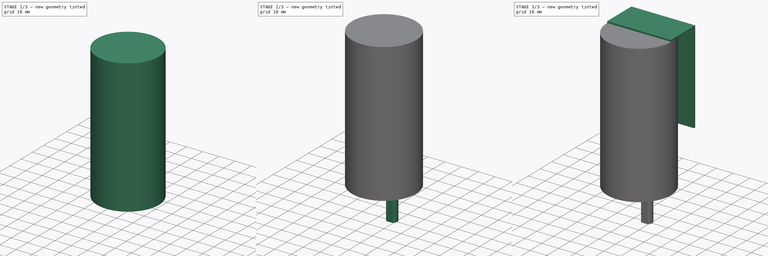
[diagram: build sequence overview — one tinted view per stage of 3, left to right]
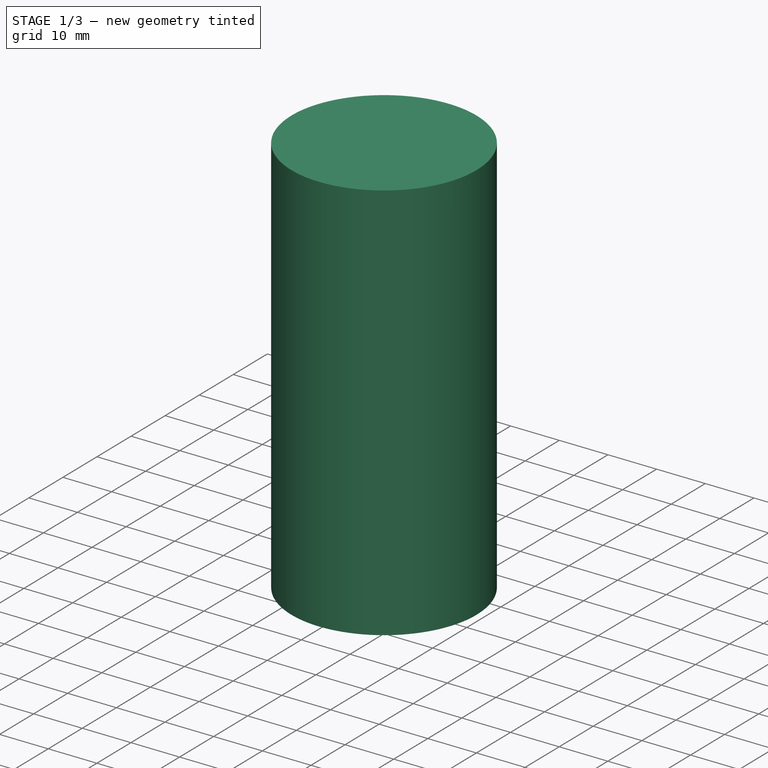
[diagram: stage 1 of 3 — iso view after this stage's code; geometry added in this stage tinted green]
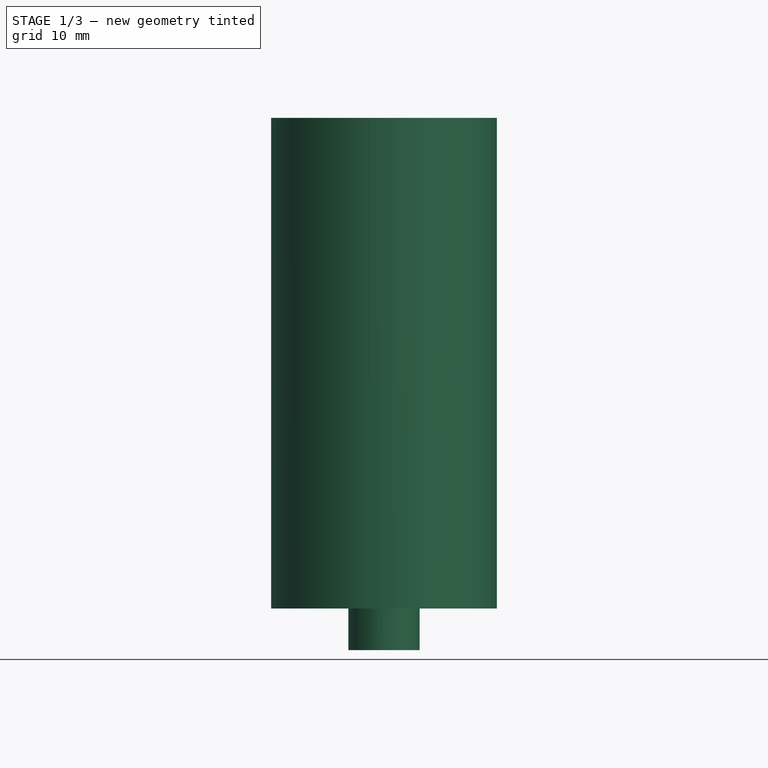
[diagram: stage 1 of 3 — front view after this stage's code; geometry added in this stage tinted green]
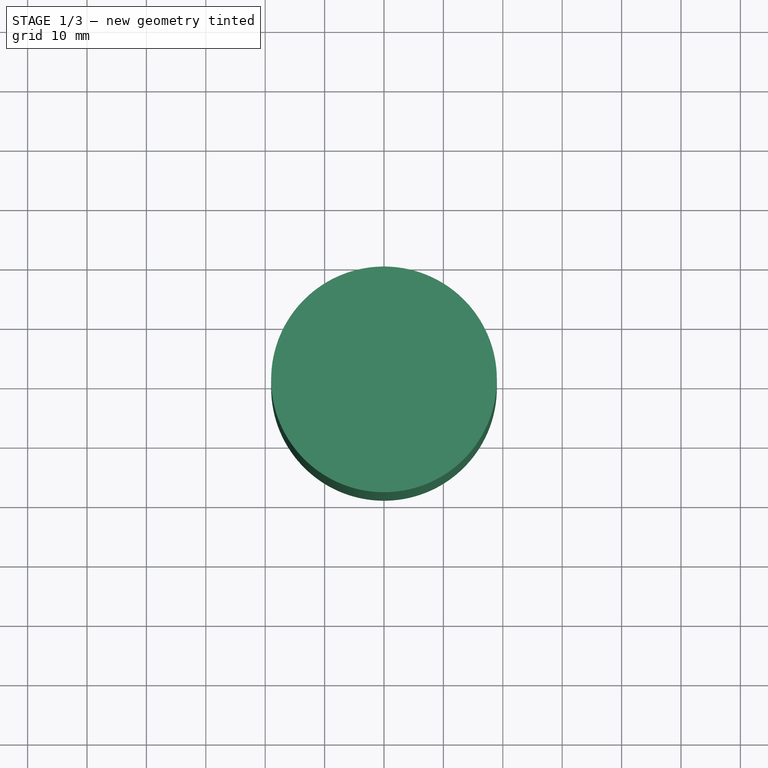
[diagram: stage 1 of 3 — top view after this stage's code; geometry added in this stage tinted green]
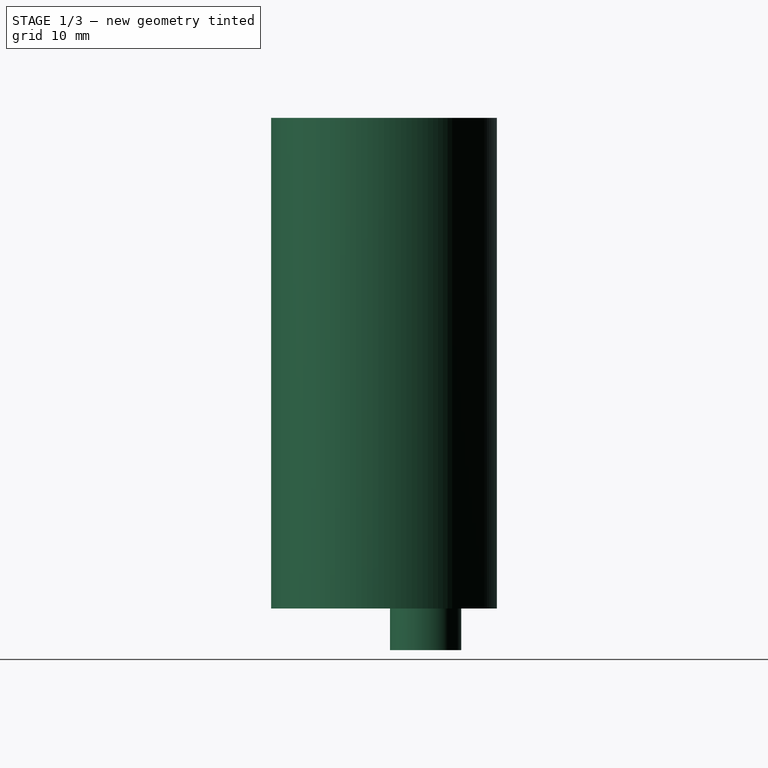
[diagram: stage 1 of 3 — right view after this stage's code; geometry added in this stage tinted green]
FCSTD DOCUMENT  (FreeCAD 0.16R6706 (Git))
Label: Moteur Gauche
License: All rights reserved
LicenseURL: http://en.wikipedia.org/wiki/All_rights_reserved
objects: Sketcher::SketchObject×6, PartDesign::Pad×5
note: 16 computed .brp shape members not serialized (recipe doc carries the construction recipe); baked Part::Feature solids carry a one-line shape summary decoded from their .brp

FEATURE [Sketcher::SketchObject] Sketch
  sketch-geometry (1):
    g0: Circle CenterX=0 CenterY=0 CenterZ=0 NormalX=0 NormalY=0 NormalZ=1 Radius=19
  constraints (2):
    c: Coincident(g0,g-1)
    c: Radius(g0) = 19
FEATURE [PartDesign::Pad] Pad
  Length = 82.6
  Length2 = 100
  Sketch = -> Sketch
  Type = 0
FEATURE [Sketcher::SketchObject] Sketch001
  Placement = pos=(0,0,0) rot=(1,0,0;3.14159rad)
  Support = -> Pad [Face2]
  sketch-geometry (1):
    g0: Circle CenterX=0 CenterY=-7 CenterZ=0 NormalX=0 NormalY=0 NormalZ=1 Radius=6
  constraints (3):
    c: PointOnObject(g0,g-2)
    c: Radius(g0) = 6
    c: Distance(g-1,g0) = 7
FEATURE [PartDesign::Pad] Pad001
  Length = 7
  Length2 = 100
  Sketch = -> Sketch001
  Type = 0
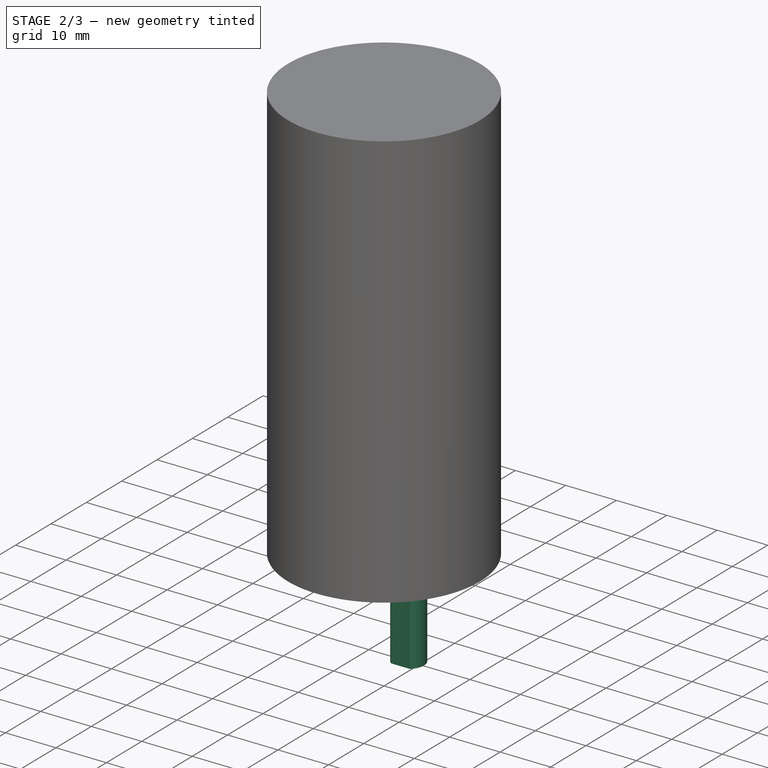
[diagram: stage 2 of 3 — iso view after this stage's code; geometry added in this stage tinted green]
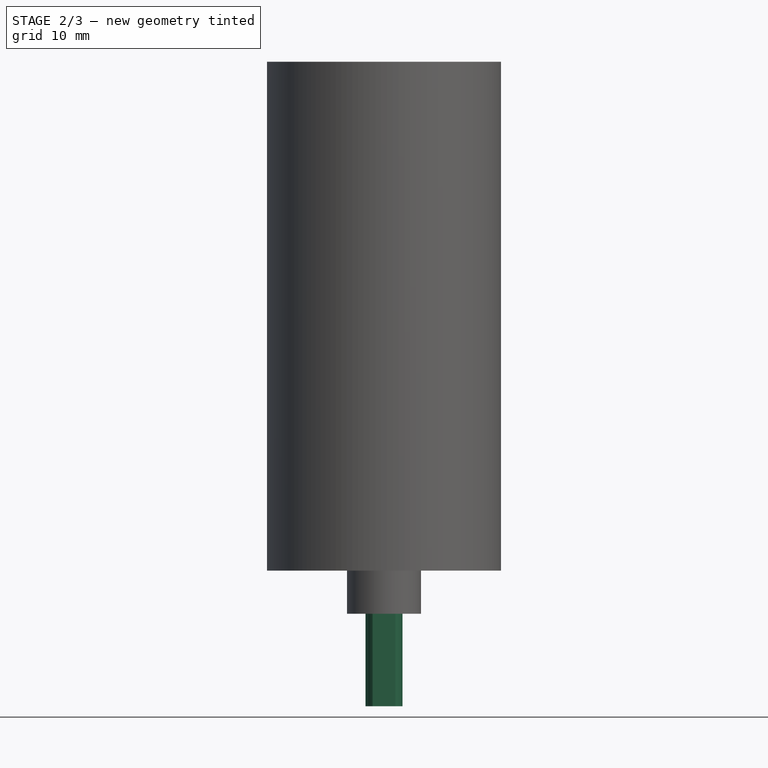
[diagram: stage 2 of 3 — front view after this stage's code; geometry added in this stage tinted green]
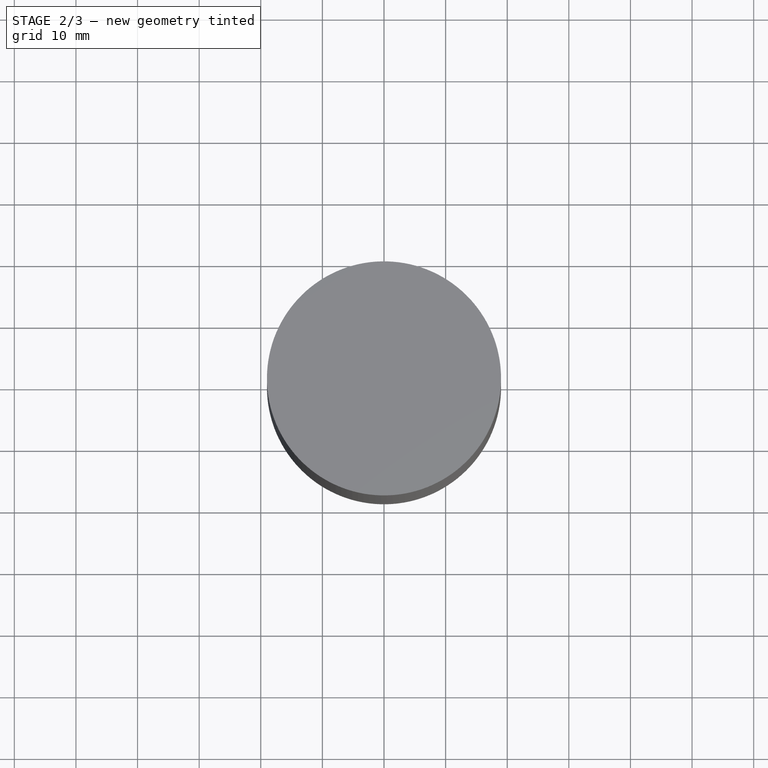
[diagram: stage 2 of 3 — top view after this stage's code; geometry added in this stage tinted green]
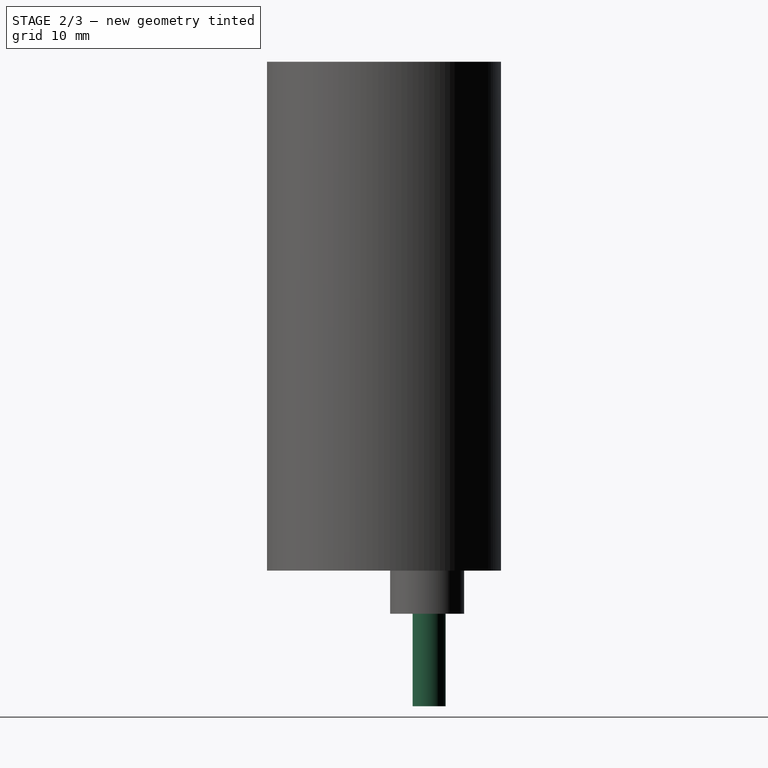
[diagram: stage 2 of 3 — right view after this stage's code; geometry added in this stage tinted green]
FEATURE [Sketcher::SketchObject] Sketch002
  ExternalGeometry = -> [Pad001]
  Placement = pos=(0,0,-7) rot=(1,0,0;3.14159rad)
  Support = -> Pad001 [Face5]
  sketch-geometry (2):
    g0: LineSegment StartX=-1.85 StartY=-4.63833 StartZ=0 EndX=1.85 EndY=-4.63833 EndZ=0
    g1: ArcOfCircle CenterX=0 CenterY=-7 CenterZ=0 NormalX=0 NormalY=0 NormalZ=1 Radius=3 StartAngle=2.2353 EndAngle=7.18948
  constraints (7):
    c: Horizontal(g0)
    c: Coincident(g1,g0)
    c: Coincident(g1,g0)
    c: DistanceX(g0,g0) = 3.7
    c: Radius(g1) = 3
    c: PointOnObject(g1,g-2)
    c: Coincident(g-3,g1)
FEATURE [PartDesign::Pad] Pad002
  Length = 15
  Length2 = 100
  Sketch = -> Sketch002
  Type = 0
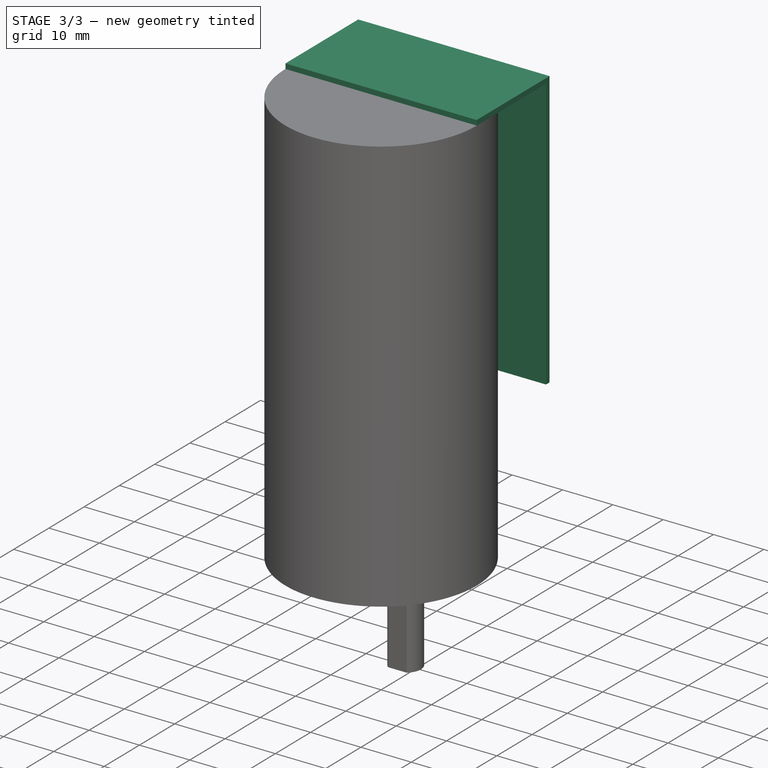
[diagram: stage 3 of 3 — iso view after this stage's code; geometry added in this stage tinted green]
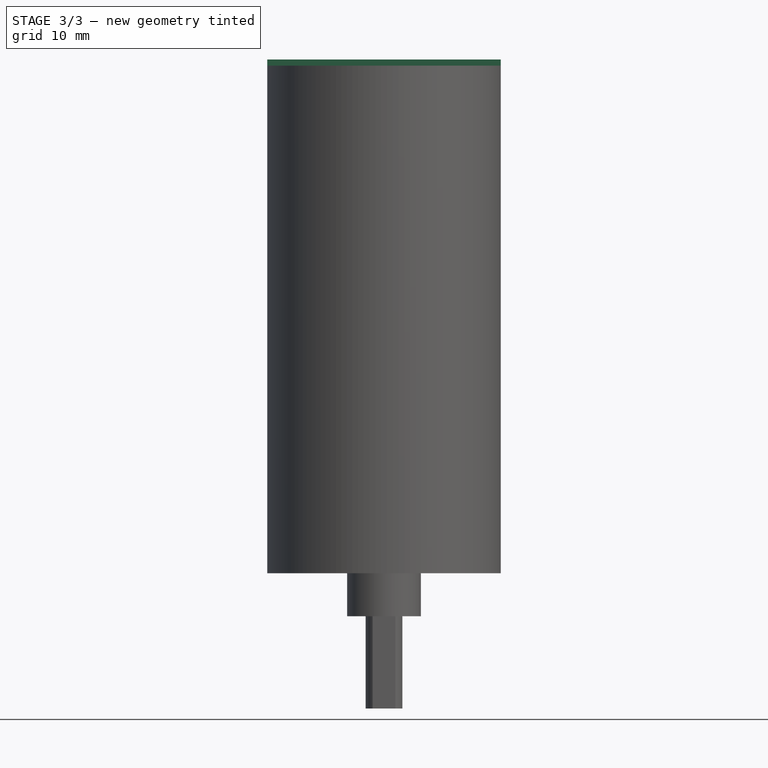
[diagram: stage 3 of 3 — front view after this stage's code; geometry added in this stage tinted green]
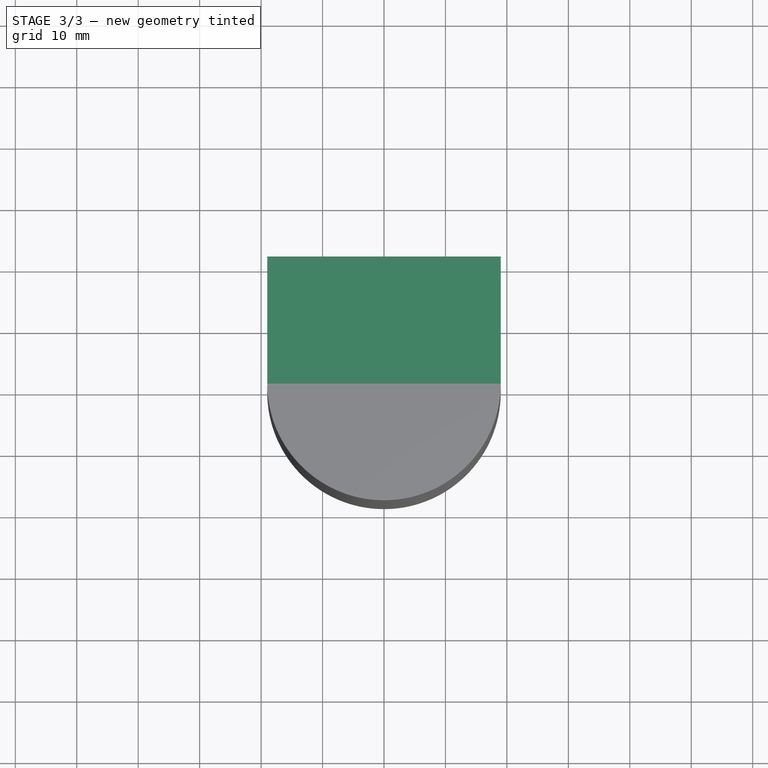
[diagram: stage 3 of 3 — top view after this stage's code; geometry added in this stage tinted green]
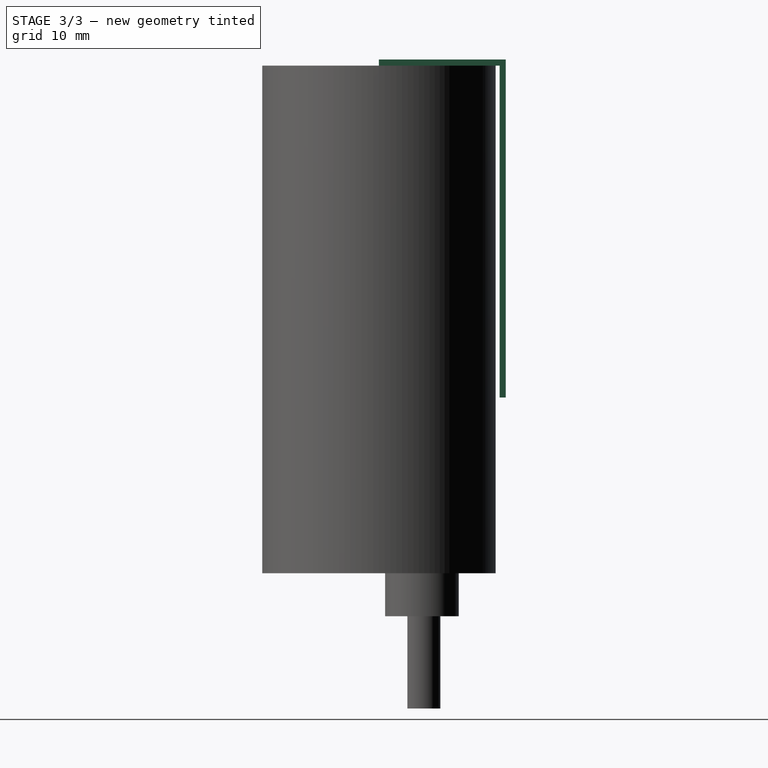
[diagram: stage 3 of 3 — right view after this stage's code; geometry added in this stage tinted green]
FEATURE [Sketcher::SketchObject] Sketch003
  ExternalGeometry = -> [Pad002]
  Placement = pos=(0,0,82.6) rot=(0,0,1;0rad)
  Support = -> Pad002 [Face3]
  sketch-geometry (4):
    g0: LineSegment StartX=-19 StartY=0 StartZ=0 EndX=19 EndY=0 EndZ=0
    g1: LineSegment StartX=19 StartY=0 StartZ=0 EndX=19 EndY=19.65 EndZ=0
    g2: LineSegment StartX=19 StartY=19.65 StartZ=0 EndX=-19 EndY=19.65 EndZ=0
    g3: LineSegment StartX=-19 StartY=19.65 StartZ=0 EndX=-19 EndY=0 EndZ=0
  constraints (12):
    c: Coincident(g0,g1)
    c: Coincident(g1,g2)
    c: Coincident(g2,g3)
    c: Coincident(g3,g0)
    c: Horizontal(g0)
    c: Horizontal(g2)
    c: Vertical(g1)
    c: Vertical(g3)
    c: PointOnObject(g0,g-3)
    c: PointOnObject(g0,g-3)
    c: DistanceY(g1,g1) = 19.65
    c: PointOnObject(g0,g-1)
FEATURE [PartDesign::Pad] Pad003
  Length = 1
  Length2 = 100
  Sketch = -> Sketch003
  Type = 0
FEATURE [Sketcher::SketchObject] Sketch004
  ExternalGeometry = -> [Pad003]
  Placement = pos=(0,19.65,0) rot=(0,0.707107,0.707107;3.14159rad)
  Support = -> Pad003 [Face9]
FEATURE [Sketcher::SketchObject] Sketch005
  ExternalGeometry = -> [Pad003]
  Placement = pos=(0,19.65,0) rot=(0,0.707107,0.707107;3.14159rad)
  Support = -> Pad003 [Face9]
  sketch-geometry (4):
    g0: LineSegment StartX=-19 StartY=83.6 StartZ=0 EndX=19 EndY=83.6 EndZ=0
    g1: LineSegment StartX=19 StartY=83.6 StartZ=0 EndX=19 EndY=28.6 EndZ=0
    g2: LineSegment StartX=19 StartY=28.6 StartZ=0 EndX=-19 EndY=28.6 EndZ=0
    g3: LineSegment StartX=-19 StartY=28.6 StartZ=0 EndX=-19 EndY=83.6 EndZ=0
  constraints (11):
    c: Coincident(g0,g1)
    c: Coincident(g1,g2)
    c: Coincident(g2,g3)
    c: Coincident(g3,g0)
    c: Horizontal(g0)
    c: Horizontal(g2)
    c: Vertical(g1)
    c: Vertical(g3)
    c: Coincident(g0,g-6)
    c: DistanceY(g1,g1) = 55
    c: Coincident(g0,g-4)
FEATURE [PartDesign::Pad] Pad004
  Length = 1
  Length2 = 100
  Sketch = -> Sketch005
  Type = 0
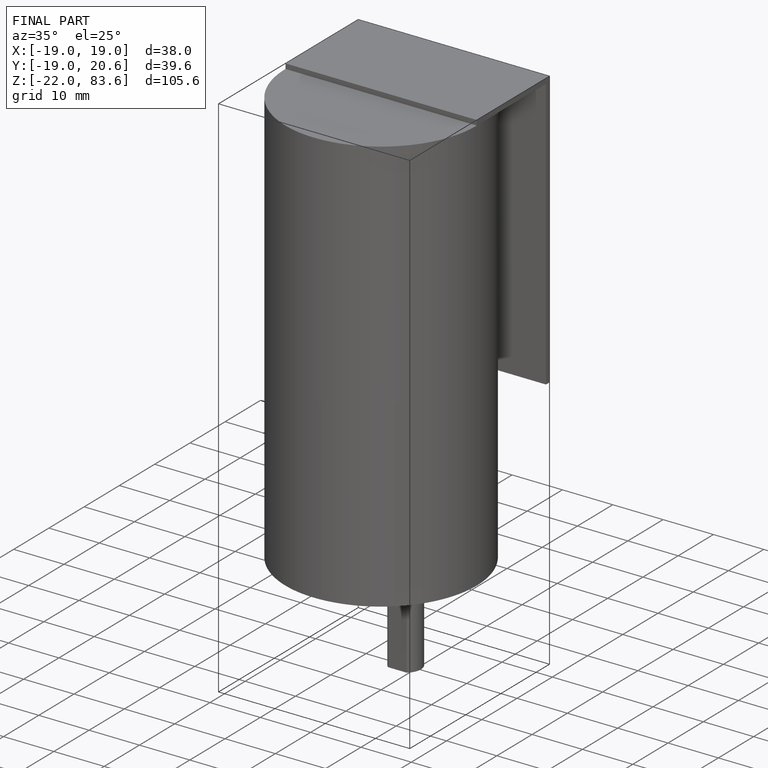
[diagram: finished part — iso view with bounding-box wireframe]
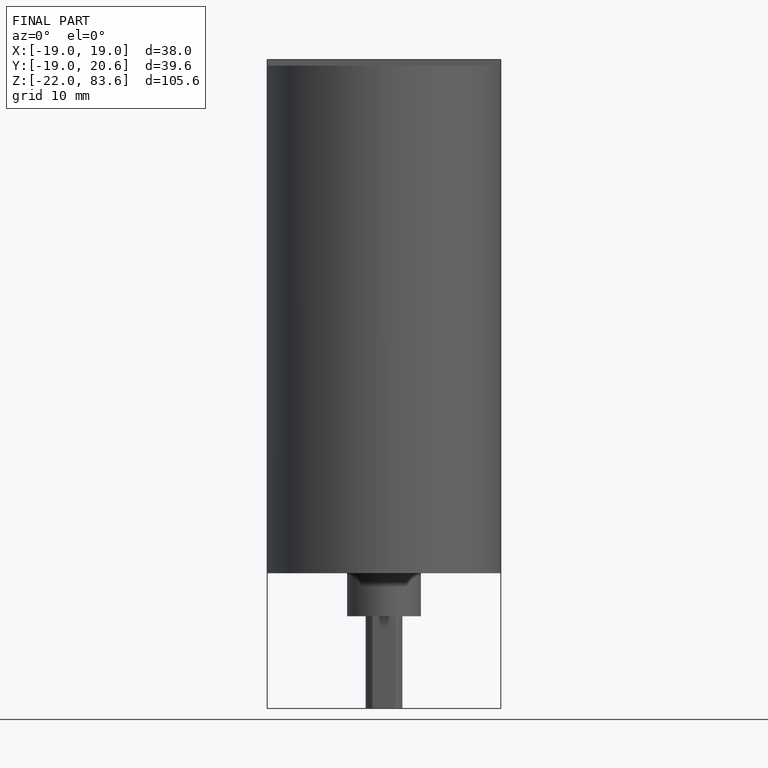
[diagram: finished part — front view with bounding-box wireframe]
